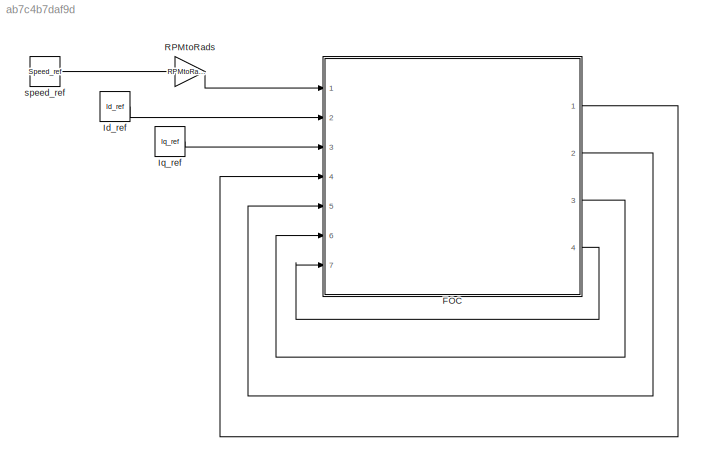
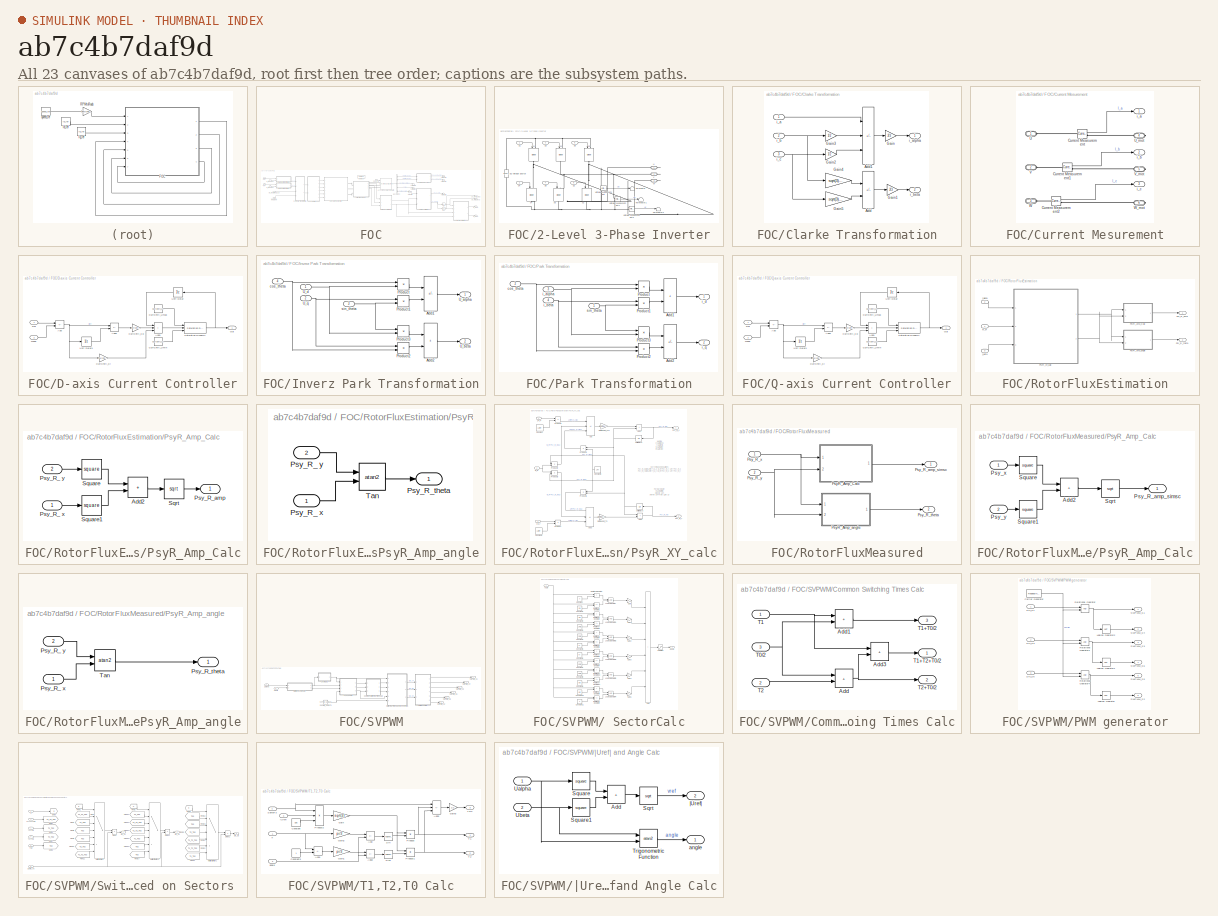
[diagram: thumbnail index - all 23 canvases of the model, root first then tree order]
MODEL slx_ab7c4b7daf9d
KIND model
CONFIG AbsTol = auto
CONFIG EnableMultiTasking = off
CONFIG FixedStep = auto
CONFIG MaxStep = auto
CONFIG MinStep = auto
CONFIG RelTol = 1e-3
CONFIG SampleTimeConstraint = Unconstrained
CONFIG SolverName = VariableStepAuto
CONFIG StartTime = 0.0
CONFIG StopTime = SimTime
BLOCK [SubSystem] FOC
  Ports = [7, 4]
  RequestExecContextInheritance = off
BLOCK [SubSystem] FOC/2-Level 3-Phase Inverter
  Ports = [6, 0, 0, 0, 0, 0, 3]
  RequestExecContextInheritance = off
BLOCK [Reference] FOC/2-Level 3-Phase Inverter/DC Voltage Source  REF=spsDCVoltageSourceLib/DC Voltage Source
  Ports = [0, 0, 0, 0, 0, 1, 1]
  SourceBlock = spsDCVoltageSourceLib/DC Voltage Source
  SourceProductBaseCode = PS
  SourceType = DC Voltage Source
BLOCK [Inport] FOC/2-Level 3-Phase Inverter/S1
BLOCK [Inport] FOC/2-Level 3-Phase Inverter/S2
  Port = 6
BLOCK [Inport] FOC/2-Level 3-Phase Inverter/S3
  Port = 3
BLOCK [Inport] FOC/2-Level 3-Phase Inverter/S4
  Port = 2
BLOCK [Inport] FOC/2-Level 3-Phase Inverter/S5
  Port = 5
BLOCK [Inport] FOC/2-Level 3-Phase Inverter/S6
  Port = 4
BLOCK [Terminator] FOC/2-Level 3-Phase Inverter/Terminator
BLOCK [Terminator] FOC/2-Level 3-Phase Inverter/Terminator1
BLOCK [Terminator] FOC/2-Level 3-Phase Inverter/Terminator2
BLOCK [PMIOPort] FOC/2-Level 3-Phase Inverter/U
  Side = Right
BLOCK [PMIOPort] FOC/2-Level 3-Phase Inverter/V
  Port = 2
  Side = Right
BLOCK [Reference] FOC/2-Level 3-Phase Inverter/Voltage Measurement  REF=spsVoltageMeasurementLib/Voltage Measurement
  Ports = [0, 1, 0, 0, 0, 2]
  SourceBlock = spsVoltageMeasurementLib/Voltage Measurement
  SourceProductBaseCode = PS
  SourceType = Voltage Measurement
  UserDataPersistent = on
BLOCK [Reference] FOC/2-Level 3-Phase Inverter/Voltage Measurement1  REF=spsVoltageMeasurementLib/Voltage Measurement
  Ports = [0, 1, 0, 0, 0, 2]
  SourceBlock = spsVoltageMeasurementLib/Voltage Measurement
  SourceProductBaseCode = PS
  SourceType = Voltage Measurement
  UserDataPersistent = on
BLOCK [Reference] FOC/2-Level 3-Phase Inverter/Voltage Measurement2  REF=spsVoltageMeasurementLib/Voltage Measurement
  Ports = [0, 1, 0, 0, 0, 2]
  SourceBlock = spsVoltageMeasurementLib/Voltage Measurement
  SourceProductBaseCode = PS
  SourceType = Voltage Measurement
  UserDataPersistent = on
BLOCK [PMIOPort] FOC/2-Level 3-Phase Inverter/W
  Port = 3
  Side = Right
BLOCK [Reference] FOC/2-Level 3-Phase Inverter/s1  REF=spsIGBTDiodeLib/IGBT//Diode
  NameLocation = right
  Ports = [1, 0, 0, 0, 0, 1, 1]
  SourceBlock = spsIGBTDiodeLib/IGBT//Diode
  SourceProductBaseCode = PS
  SourceType = IGBT/Diode
BLOCK [Reference] FOC/2-Level 3-Phase Inverter/s2  REF=spsIGBTDiodeLib/IGBT//Diode
  NameLocation = right
  Ports = [1, 0, 0, 0, 0, 1, 1]
  SourceBlock = spsIGBTDiodeLib/IGBT//Diode
  SourceProductBaseCode = PS
  SourceType = IGBT/Diode
BLOCK [Reference] FOC/2-Level 3-Phase Inverter/s3  REF=spsIGBTDiodeLib/IGBT//Diode
  NameLocation = right
  Ports = [1, 0, 0, 0, 0, 1, 1]
  SourceBlock = spsIGBTDiodeLib/IGBT//Diode
  SourceProductBaseCode = PS
  SourceType = IGBT/Diode
BLOCK [Reference] FOC/2-Level 3-Phase Inverter/s4  REF=spsIGBTDiodeLib/IGBT//Diode
  NameLocation = right
  Ports = [1, 0, 0, 0, 0, 1, 1]
  SourceBlock = spsIGBTDiodeLib/IGBT//Diode
  SourceProductBaseCode = PS
  SourceType = IGBT/Diode
BLOCK [Reference] FOC/2-Level 3-Phase Inverter/s5  REF=spsIGBTDiodeLib/IGBT//Diode
  NameLocation = right
  Ports = [1, 0, 0, 0, 0, 1, 1]
  SourceBlock = spsIGBTDiodeLib/IGBT//Diode
  SourceProductBaseCode = PS
  SourceType = IGBT/Diode
BLOCK [Reference] FOC/2-Level 3-Phase Inverter/s6  REF=spsIGBTDiodeLib/IGBT//Diode
  NameLocation = right
  Ports = [1, 0, 0, 0, 0, 1, 1]
  SourceBlock = spsIGBTDiodeLib/IGBT//Diode
  SourceProductBaseCode = PS
  SourceType = IGBT/Diode
BLOCK [Reference] FOC/Asynchronous Machine SI Units  REF=spsAsynchronousMachineSIUnitsLib/Asynchronous Machine
SI Units
  Ports = [1, 1, 0, 0, 0, 3]
  SourceBlock = spsAsynchronousMachineSIUnitsLib/Asynchronous Machine\nSI Units
  SourceProductBaseCode = PS
  SourceType = Asynchronous Machine
BLOCK [BusSelector] FOC/Bus Selector
  OutputSignals = Rotor measurements.Rotor flux phir_d (V s),Rotor measurements.Rotor flux phir_q (V s),Mechanical.Electromagnetic torque Te (N*m),Lm (H),Mechanical.Rotor speed (wm)
  Ports = [1, 5]
BLOCK [SubSystem] FOC/Clarke Transformation
  Ports = [3, 2]
  RequestExecContextInheritance = off
BLOCK [Sum] FOC/Clarke Transformation/Add
  IconShape = rectangular
  Inputs = +-
  Ports = [2, 1]
BLOCK [Sum] FOC/Clarke Transformation/Add1
  IconShape = rectangular
  Inputs = +--
  Ports = [3, 1]
BLOCK [Gain] FOC/Clarke Transformation/Gain
  Gain = 2/3
BLOCK [Gain] FOC/Clarke Transformation/Gain1
  Gain = 2/3
BLOCK [Gain] FOC/Clarke Transformation/Gain2
  Gain = 1/2
BLOCK [Gain] FOC/Clarke Transformation/Gain3
  Gain = 1/2
BLOCK [Gain] FOC/Clarke Transformation/Gain4
  Gain = sqrt(3) / 2
BLOCK [Gain] FOC/Clarke Transformation/Gain5
  Gain = sqrt(3) / 2
BLOCK [Inport] FOC/Clarke Transformation/i_a
BLOCK [Outport] FOC/Clarke Transformation/i_alpha
BLOCK [Inport] FOC/Clarke Transformation/i_b
  Port = 2
BLOCK [Outport] FOC/Clarke Transformation/i_beta
  Port = 2
BLOCK [Inport] FOC/Clarke Transformation/i_c
  Port = 3
BLOCK [Trigonometry] FOC/Cos
  Operator = cos
  Ports = [1, 1]
BLOCK [SubSystem] FOC/Current Mesurement
  PortSchema = {"entries":[{"content":{"sides":[{"content":{"connectorIds":["LConn1","LConn2","LConn3"]},"type":"ConnectorPlacement.EquallySpacedRectSide","uuid":"218ce0f1-32a4-4746-b253-7a5af0291eed"},{"content":{"connectorIds":["RConn1","RConn2","RConn3","Out1","Out2","Out3"],"side":"RIGHT"},"type":"ConnectorPlacement.EquallySpacedRectSide","uuid":"ad04235a-dac5-4102-860a-7632fef99471"},{"content":{"connectorI...<+302ch>
  Ports = [0, 3, 0, 0, 0, 3, 3]
  RequestExecContextInheritance = off
BLOCK [Reference] FOC/Current Mesurement/Current Measurement  REF=spsCurrentMeasurementLib/Current Measurement
  Ports = [0, 1, 0, 0, 0, 1, 1]
  SourceBlock = spsCurrentMeasurementLib/Current Measurement
  SourceProductBaseCode = PS
  SourceType = Current Measurement
  UserDataPersistent = on
BLOCK [Reference] FOC/Current Mesurement/Current Measurement1  REF=spsCurrentMeasurementLib/Current Measurement
  Ports = [0, 1, 0, 0, 0, 1, 1]
  SourceBlock = spsCurrentMeasurementLib/Current Measurement
  SourceProductBaseCode = PS
  SourceType = Current Measurement
  UserDataPersistent = on
BLOCK [Reference] FOC/Current Mesurement/Current Measurement2  REF=spsCurrentMeasurementLib/Current Measurement
  Ports = [0, 1, 0, 0, 0, 1, 1]
  SourceBlock = spsCurrentMeasurementLib/Current Measurement
  SourceProductBaseCode = PS
  SourceType = Current Measurement
  UserDataPersistent = on
BLOCK [PMIOPort] FOC/Current Mesurement/U
  Side = Left
BLOCK [PMIOPort] FOC/Current Mesurement/U_mot
  Port = 4
  Side = Right
BLOCK [PMIOPort] FOC/Current Mesurement/V
  Port = 2
  Side = Left
BLOCK [PMIOPort] FOC/Current Mesurement/V_mot
  Port = 5
  Side = Right
BLOCK [PMIOPort] FOC/Current Mesurement/W
  Port = 3
  Side = Left
BLOCK [PMIOPort] FOC/Current Mesurement/W_mot
  Port = 6
  Side = Right
BLOCK [Outport] FOC/Current Mesurement/i_a
BLOCK [Outport] FOC/Current Mesurement/i_b
  Port = 2
BLOCK [Outport] FOC/Current Mesurement/i_c
  Port = 3
BLOCK [SubSystem] FOC/D-axis Current Controller
  Ports = [2, 1]
  RequestExecContextInheritance = off
BLOCK [Sum] FOC/D-axis Current Controller/Add
  IconShape = rectangular
  Inputs = +-
  Ports = [2, 1]
BLOCK [Sum] FOC/D-axis Current Controller/Add1
  IconShape = rectangular
  Inputs = +++
  Ports = [3, 1]
BLOCK [Sum] FOC/D-axis Current Controller/Add2
  IconShape = rectangular
  Inputs = +-
  Ports = [2, 1]
BLOCK [Gain] FOC/D-axis Current Controller/CurrCntrl_Ki
  Gain = CurrCntrl_Ki
BLOCK [Gain] FOC/D-axis Current Controller/CurrCntrl_Kp
  Gain = CurrCntrl_Kp
BLOCK [Constant] FOC/D-axis Current Controller/CurrCntrl_Umax
  Value = CurrCntrl_Umax
BLOCK [Constant] FOC/D-axis Current Controller/CurrCntrl_Umin
  Value = CurrCntrl_Umin
BLOCK [Inport] FOC/D-axis Current Controller/Meas
  Port = 2
BLOCK [Outport] FOC/D-axis Current Controller/Out
BLOCK [Inport] FOC/D-axis Current Controller/Ref
BLOCK [Reference] FOC/D-axis Current Controller/Saturation Dynamic  REF=simulink/Discontinuities/Saturation
Dynamic
  Ports = [3, 1]
  SourceBlock = simulink/Discontinuities/Saturation\nDynamic
  SourceProductBaseCode = SL
  SourceType = Saturation Dynamic
BLOCK [UnitDelay] FOC/D-axis Current Controller/Unit Delay
  HasFrameUpgradeWarning = on
  NameLocation = top
  SampleTime = -1
BLOCK [UnitDelay] FOC/D-axis Current Controller/Unit Delay1
  HasFrameUpgradeWarning = on
  SampleTime = -1
BLOCK [Inport] FOC/Id_feedback
  Port = 4
BLOCK [Outport] FOC/Id_meas
BLOCK [Inport] FOC/Id_ref
  Port = 2
BLOCK [SubSystem] FOC/Inverz Park Transformation
  Ports = [4, 2]
  RequestExecContextInheritance = off
BLOCK [Sum] FOC/Inverz Park Transformation/Add1
  IconShape = rectangular
  Inputs = +-
  Ports = [2, 1]
BLOCK [Sum] FOC/Inverz Park Transformation/Add2
  IconShape = rectangular
  Ports = [2, 1]
BLOCK [Product] FOC/Inverz Park Transformation/Product
  Ports = [2, 1]
BLOCK [Product] FOC/Inverz Park Transformation/Product1
  Ports = [2, 1]
BLOCK [Product] FOC/Inverz Park Transformation/Product2
  Ports = [2, 1]
BLOCK [Product] FOC/Inverz Park Transformation/Product3
  Ports = [2, 1]
BLOCK [Outport] FOC/Inverz Park Transformation/U_alpha
BLOCK [Outport] FOC/Inverz Park Transformation/U_beta
  Port = 2
BLOCK [Inport] FOC/Inverz Park Transformation/U_d
BLOCK [Inport] FOC/Inverz Park Transformation/U_q
  Port = 2
BLOCK [Inport] FOC/Inverz Park Transformation/cos_theta
  Port = 4
BLOCK [Inport] FOC/Inverz Park Transformation/sin_theta
  Port = 3
BLOCK [Inport] FOC/Iq_feedback
  Port = 5
BLOCK [Outport] FOC/Iq_meas
  Port = 2
BLOCK [Inport] FOC/Iq_ref
  Port = 3
BLOCK [SubSystem] FOC/Park Transformation
  Ports = [4, 2]
  RequestExecContextInheritance = off
BLOCK [Sum] FOC/Park Transformation/Add1
  IconShape = rectangular
  Ports = [2, 1]
BLOCK [Sum] FOC/Park Transformation/Add2
  IconShape = rectangular
  Inputs = -+
  Ports = [2, 1]
BLOCK [Product] FOC/Park Transformation/Product
  Ports = [2, 1]
BLOCK [Product] FOC/Park Transformation/Product1
  Ports = [2, 1]
BLOCK [Product] FOC/Park Transformation/Product2
  Ports = [2, 1]
BLOCK [Product] FOC/Park Transformation/Product3
  Ports = [2, 1]
BLOCK [Inport] FOC/Park Transformation/cos_theta
  Port = 2
BLOCK [Inport] FOC/Park Transformation/i_alpha
  Port = 3
BLOCK [Inport] FOC/Park Transformation/i_beta
  Port = 4
BLOCK [Outport] FOC/Park Transformation/i_d
BLOCK [Outport] FOC/Park Transformation/i_q
  Port = 2
BLOCK [Inport] FOC/Park Transformation/sin_theta
BLOCK [Gain] FOC/PolePairs
  Gain = PolePairs
BLOCK [SubSystem] FOC/Q-axis Current Controller
  Ports = [2, 1]
  RequestExecContextInheritance = off
BLOCK [Sum] FOC/Q-axis Current Controller/Add
  IconShape = rectangular
  Inputs = +-
  Ports = [2, 1]
BLOCK [Sum] FOC/Q-axis Current Controller/Add1
  IconShape = rectangular
  Inputs = +++
  Ports = [3, 1]
BLOCK [Sum] FOC/Q-axis Current Controller/Add2
  IconShape = rectangular
  Inputs = +-
  Ports = [2, 1]
BLOCK [Gain] FOC/Q-axis Current Controller/CurrCntrl_Ki
  Gain = CurrCntrl_Ki
BLOCK [Gain] FOC/Q-axis Current Controller/CurrCntrl_Kp
  Gain = CurrCntrl_Kp
BLOCK [Constant] FOC/Q-axis Current Controller/CurrCntrl_Umax
  Value = CurrCntrl_Umax
BLOCK [Constant] FOC/Q-axis Current Controller/CurrCntrl_Umin
  Value = CurrCntrl_Umin
BLOCK [Inport] FOC/Q-axis Current Controller/Meas
  Port = 2
BLOCK [Outport] FOC/Q-axis Current Controller/Out
BLOCK [Inport] FOC/Q-axis Current Controller/Ref
BLOCK [Reference] FOC/Q-axis Current Controller/Saturation Dynamic  REF=simulink/Discontinuities/Saturation
Dynamic
  Ports = [3, 1]
  SourceBlock = simulink/Discontinuities/Saturation\nDynamic
  SourceProductBaseCode = SL
  SourceType = Saturation Dynamic
BLOCK [UnitDelay] FOC/Q-axis Current Controller/Unit Delay
  HasFrameUpgradeWarning = on
  NameLocation = top
  SampleTime = -1
BLOCK [UnitDelay] FOC/Q-axis Current Controller/Unit Delay1
  HasFrameUpgradeWarning = on
  SampleTime = -1
BLOCK [SubSystem] FOC/RotorFluxEstimation
  Ports = [3, 2]
  RequestExecContextInheritance = off
BLOCK [SubSystem] FOC/RotorFluxEstimation/PsyR_Amp_Calc
  Ports = [2, 1]
  RequestExecContextInheritance = off
BLOCK [Sum] FOC/RotorFluxEstimation/PsyR_Amp_Calc/Add2
  IconShape = rectangular
  Ports = [2, 1]
BLOCK [Inport] FOC/RotorFluxEstimation/PsyR_Amp_Calc/Psy_R_ x
BLOCK [Inport] FOC/RotorFluxEstimation/PsyR_Amp_Calc/Psy_R_ y
  Port = 2
BLOCK [Outport] FOC/RotorFluxEstimation/PsyR_Amp_Calc/Psy_R_amp
BLOCK [Sqrt] FOC/RotorFluxEstimation/PsyR_Amp_Calc/Sqrt
BLOCK [Math] FOC/RotorFluxEstimation/PsyR_Amp_Calc/Square
  Operator = square
  Ports = [1, 1]
BLOCK [Math] FOC/RotorFluxEstimation/PsyR_Amp_Calc/Square1
  Operator = square
  Ports = [1, 1]
BLOCK [SubSystem] FOC/RotorFluxEstimation/PsyR_Amp_angle
  Ports = [2, 1]
  RequestExecContextInheritance = off
BLOCK [Inport] FOC/RotorFluxEstimation/PsyR_Amp_angle/Psy_R_ x
BLOCK [Inport] FOC/RotorFluxEstimation/PsyR_Amp_angle/Psy_R_ y
  Port = 2
BLOCK [Outport] FOC/RotorFluxEstimation/PsyR_Amp_angle/Psy_R_theta
BLOCK [Trigonometry] FOC/RotorFluxEstimation/PsyR_Amp_angle/Tan
  Operator = atan2
  Ports = [2, 1]
BLOCK [SubSystem] FOC/RotorFluxEstimation/PsyR_XY_calc
  Ports = [3, 2]
  RequestExecContextInheritance = off
BLOCK [Sum] FOC/RotorFluxEstimation/PsyR_XY_calc/Add
  IconShape = rectangular
  Inputs = +--
  Ports = [3, 1]
BLOCK [Sum] FOC/RotorFluxEstimation/PsyR_XY_calc/Add1
  IconShape = rectangular
  Ports = [2, 1]
BLOCK [Sum] FOC/RotorFluxEstimation/PsyR_XY_calc/Add2
  IconShape = rectangular
  Ports = [2, 1]
BLOCK [Sum] FOC/RotorFluxEstimation/PsyR_XY_calc/Add3
  IconShape = rectangular
  Inputs = -++
  Ports = [3, 1]
BLOCK [Constant] FOC/RotorFluxEstimation/PsyR_XY_calc/Constant
  Value = Lm / Tr
BLOCK [Constant] FOC/RotorFluxEstimation/PsyR_XY_calc/Constant1
  Value = Lm / Tr
BLOCK [Constant] FOC/RotorFluxEstimation/PsyR_XY_calc/Constant3
  NameLocation = top
  Value = 1/Tr
BLOCK [Product] FOC/RotorFluxEstimation/PsyR_XY_calc/Product
  Ports = [2, 1]
BLOCK [Product] FOC/RotorFluxEstimation/PsyR_XY_calc/Product1
  Ports = [2, 1]
BLOCK [Product] FOC/RotorFluxEstimation/PsyR_XY_calc/Product2
  Ports = [2, 1]
BLOCK [Product] FOC/RotorFluxEstimation/PsyR_XY_calc/Product3
  Ports = [2, 1]
BLOCK [Product] FOC/RotorFluxEstimation/PsyR_XY_calc/Product4
  NameLocation = top
  Ports = [2, 1]
BLOCK [Product] FOC/RotorFluxEstimation/PsyR_XY_calc/Product5
  NameLocation = top
  Ports = [2, 1]
BLOCK [Outport] FOC/RotorFluxEstimation/PsyR_XY_calc/Psy_R_ x
BLOCK [Outport] FOC/RotorFluxEstimation/PsyR_XY_calc/Psy_R_ y
  Port = 2
BLOCK [Gain] FOC/RotorFluxEstimation/PsyR_XY_calc/RotFluxEst_Ts
  Gain = RotFluxEst_Ts
BLOCK [Gain] FOC/RotorFluxEstimation/PsyR_XY_calc/RotFluxEst_Ts1
  Gain = RotFluxEst_Ts
BLOCK [UnitDelay] FOC/RotorFluxEstimation/PsyR_XY_calc/Unit Delay2
  HasFrameUpgradeWarning = on
  NameLocation = top
  SampleTime = -1
BLOCK [UnitDelay] FOC/RotorFluxEstimation/PsyR_XY_calc/Unit Delay3
  HasFrameUpgradeWarning = on
  NameLocation = top
  SampleTime = -1
BLOCK [Inport] FOC/RotorFluxEstimation/PsyR_XY_calc/i_S_ x
BLOCK [Inport] FOC/RotorFluxEstimation/PsyR_XY_calc/i_S_ y
  Port = 3
BLOCK [Inport] FOC/RotorFluxEstimation/PsyR_XY_calc/w_R
  Port = 2
BLOCK [Outport] FOC/RotorFluxEstimation/Psy_R_amp
BLOCK [Outport] FOC/RotorFluxEstimation/Psy_R_theta
  Port = 2
BLOCK [Inport] FOC/RotorFluxEstimation/i_alpha
  Port = 2
BLOCK [Inport] FOC/RotorFluxEstimation/i_beta
  Port = 3
BLOCK [Inport] FOC/RotorFluxEstimation/w_R
BLOCK [SubSystem] FOC/RotorFluxMeasured
  Ports = [2, 2]
  RequestExecContextInheritance = off
BLOCK [SubSystem] FOC/RotorFluxMeasured/PsyR_Amp_Calc
  Ports = [2, 1]
  RequestExecContextInheritance = off
BLOCK [Sum] FOC/RotorFluxMeasured/PsyR_Amp_Calc/Add2
  IconShape = rectangular
  Ports = [2, 1]
BLOCK [Outport] FOC/RotorFluxMeasured/PsyR_Amp_Calc/Psy_R_amp_simsc
BLOCK [Inport] FOC/RotorFluxMeasured/PsyR_Amp_Calc/Psy_x
BLOCK [Inport] FOC/RotorFluxMeasured/PsyR_Amp_Calc/Psy_y
  Port = 2
BLOCK [Sqrt] FOC/RotorFluxMeasured/PsyR_Amp_Calc/Sqrt
BLOCK [Math] FOC/RotorFluxMeasured/PsyR_Amp_Calc/Square
  Operator = square
  Ports = [1, 1]
BLOCK [Math] FOC/RotorFluxMeasured/PsyR_Amp_Calc/Square1
  Operator = square
  Ports = [1, 1]
BLOCK [SubSystem] FOC/RotorFluxMeasured/PsyR_Amp_angle
  Ports = [2, 1]
  RequestExecContextInheritance = off
BLOCK [Inport] FOC/RotorFluxMeasured/PsyR_Amp_angle/Psy_R_ x
BLOCK [Inport] FOC/RotorFluxMeasured/PsyR_Amp_angle/Psy_R_ y
  Port = 2
BLOCK [Outport] FOC/RotorFluxMeasured/PsyR_Amp_angle/Psy_R_theta
BLOCK [Trigonometry] FOC/RotorFluxMeasured/PsyR_Amp_angle/Tan
  Operator = atan2
  Ports = [2, 1]
BLOCK [Outport] FOC/RotorFluxMeasured/Psy_R_amp_simsc
BLOCK [Outport] FOC/RotorFluxMeasured/Psy_R_theta
  Port = 2
BLOCK [Inport] FOC/RotorFluxMeasured/Psy_R_x
BLOCK [Inport] FOC/RotorFluxMeasured/Psy_R_y
  Port = 2
BLOCK [SubSystem] FOC/SVPWM
  Ports = [2, 6]
  RequestExecContextInheritance = off
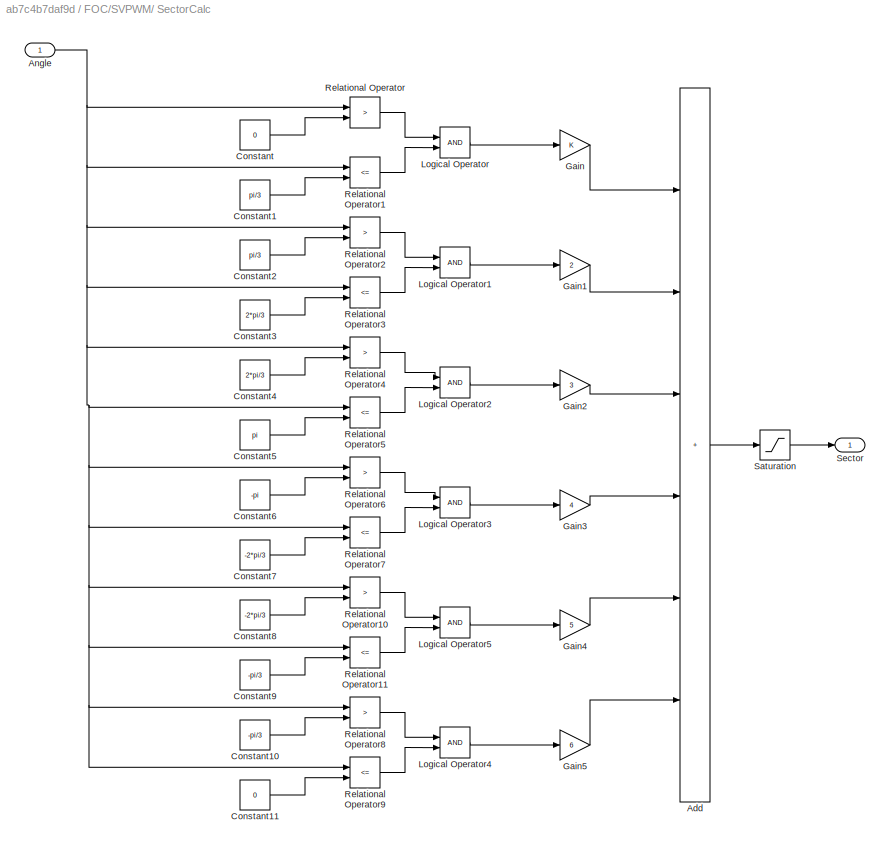
BLOCK [SubSystem] FOC/SVPWM/ SectorCalc
  Ports = [1, 1]
  RequestExecContextInheritance = off
BLOCK [Sum] FOC/SVPWM/ SectorCalc/Add
  IconShape = rectangular
  Inputs = ++++++
  Ports = [6, 1]
BLOCK [Inport] FOC/SVPWM/ SectorCalc/Angle
BLOCK [Constant] FOC/SVPWM/ SectorCalc/Constant
  Value = 0
BLOCK [Constant] FOC/SVPWM/ SectorCalc/Constant1
  Value = pi/3
BLOCK [Constant] FOC/SVPWM/ SectorCalc/Constant10
  Value = -pi/3
BLOCK [Constant] FOC/SVPWM/ SectorCalc/Constant11
  Value = 0
BLOCK [Constant] FOC/SVPWM/ SectorCalc/Constant2
  Value = pi/3
BLOCK [Constant] FOC/SVPWM/ SectorCalc/Constant3
  Value = 2*pi/3
BLOCK [Constant] FOC/SVPWM/ SectorCalc/Constant4
  Value = 2*pi/3
BLOCK [Constant] FOC/SVPWM/ SectorCalc/Constant5
  Value = pi
BLOCK [Constant] FOC/SVPWM/ SectorCalc/Constant6
  Value = -pi
BLOCK [Constant] FOC/SVPWM/ SectorCalc/Constant7
  Value = -2*pi/3
BLOCK [Constant] FOC/SVPWM/ SectorCalc/Constant8
  Value = -2*pi/3
BLOCK [Constant] FOC/SVPWM/ SectorCalc/Constant9
  Value = -pi/3
BLOCK [Gain] FOC/SVPWM/ SectorCalc/Gain
BLOCK [Gain] FOC/SVPWM/ SectorCalc/Gain1
  Gain = 2
BLOCK [Gain] FOC/SVPWM/ SectorCalc/Gain2
  Gain = 3
BLOCK [Gain] FOC/SVPWM/ SectorCalc/Gain3
  Gain = 4
BLOCK [Gain] FOC/SVPWM/ SectorCalc/Gain4
  Gain = 5
BLOCK [Gain] FOC/SVPWM/ SectorCalc/Gain5
  Gain = 6
BLOCK [Logic] FOC/SVPWM/ SectorCalc/Logical Operator
  AllPortsSameDT = off
  OutDataTypeStr = boolean
  Ports = [2, 1]
BLOCK [Logic] FOC/SVPWM/ SectorCalc/Logical Operator1
  AllPortsSameDT = off
  OutDataTypeStr = boolean
  Ports = [2, 1]
BLOCK [Logic] FOC/SVPWM/ SectorCalc/Logical Operator2
  AllPortsSameDT = off
  OutDataTypeStr = boolean
  Ports = [2, 1]
BLOCK [Logic] FOC/SVPWM/ SectorCalc/Logical Operator3
  AllPortsSameDT = off
  OutDataTypeStr = boolean
  Ports = [2, 1]
BLOCK [Logic] FOC/SVPWM/ SectorCalc/Logical Operator4
  AllPortsSameDT = off
  OutDataTypeStr = boolean
  Ports = [2, 1]
BLOCK [Logic] FOC/SVPWM/ SectorCalc/Logical Operator5
  AllPortsSameDT = off
  OutDataTypeStr = boolean
  Ports = [2, 1]
BLOCK [RelationalOperator] FOC/SVPWM/ SectorCalc/Relational Operator
  InputSameDT = off
  Operator = >
  OutDataTypeStr = boolean
  Ports = [2, 1]
  RndMeth = Simplest
BLOCK [RelationalOperator] FOC/SVPWM/ SectorCalc/Relational Operator1
  InputSameDT = off
  Operator = <=
  OutDataTypeStr = boolean
  Ports = [2, 1]
  RndMeth = Simplest
BLOCK [RelationalOperator] FOC/SVPWM/ SectorCalc/Relational Operator10
  InputSameDT = off
  Operator = >
  OutDataTypeStr = boolean
  Ports = [2, 1]
  RndMeth = Simplest
BLOCK [RelationalOperator] FOC/SVPWM/ SectorCalc/Relational Operator11
  InputSameDT = off
  Operator = <=
  OutDataTypeStr = boolean
  Ports = [2, 1]
  RndMeth = Simplest
BLOCK [RelationalOperator] FOC/SVPWM/ SectorCalc/Relational Operator2
  InputSameDT = off
  Operator = >
  OutDataTypeStr = boolean
  Ports = [2, 1]
  RndMeth = Simplest
BLOCK [RelationalOperator] FOC/SVPWM/ SectorCalc/Relational Operator3
  InputSameDT = off
  Operator = <=
  OutDataTypeStr = boolean
  Ports = [2, 1]
  RndMeth = Simplest
BLOCK [RelationalOperator] FOC/SVPWM/ SectorCalc/Relational Operator4
  InputSameDT = off
  Operator = >
  OutDataTypeStr = boolean
  Ports = [2, 1]
  RndMeth = Simplest
BLOCK [RelationalOperator] FOC/SVPWM/ SectorCalc/Relational Operator5
  InputSameDT = off
  Operator = <=
  OutDataTypeStr = boolean
  Ports = [2, 1]
  RndMeth = Simplest
BLOCK [RelationalOperator] FOC/SVPWM/ SectorCalc/Relational Operator6
  InputSameDT = off
  Operator = >
  OutDataTypeStr = boolean
  Ports = [2, 1]
  RndMeth = Simplest
BLOCK [RelationalOperator] FOC/SVPWM/ SectorCalc/Relational Operator7
  InputSameDT = off
  Operator = <=
  OutDataTypeStr = boolean
  Ports = [2, 1]
  RndMeth = Simplest
BLOCK [RelationalOperator] FOC/SVPWM/ SectorCalc/Relational Operator8
  InputSameDT = off
  Operator = >
  OutDataTypeStr = boolean
  Ports = [2, 1]
  RndMeth = Simplest
BLOCK [RelationalOperator] FOC/SVPWM/ SectorCalc/Relational Operator9
  InputSameDT = off
  Operator = <=
  OutDataTypeStr = boolean
  Ports = [2, 1]
  RndMeth = Simplest
BLOCK [Saturate] FOC/SVPWM/ SectorCalc/Saturation
  LowerLimit = 1
  UpperLimit = 6
BLOCK [Outport] FOC/SVPWM/ SectorCalc/Sector
BLOCK [SubSystem] FOC/SVPWM/Common Switching Times Calc
  Ports = [3, 3]
  RequestExecContextInheritance = off
BLOCK [Sum] FOC/SVPWM/Common Switching Times Calc/Add
  IconShape = rectangular
  Ports = [2, 1]
BLOCK [Sum] FOC/SVPWM/Common Switching Times Calc/Add1
  IconShape = rectangular
  Ports = [2, 1]
BLOCK [Sum] FOC/SVPWM/Common Switching Times Calc/Add3
  IconShape = rectangular
  Ports = [2, 1]
BLOCK [Inport] FOC/SVPWM/Common Switching Times Calc/T0//2
  Port = 3
BLOCK [Inport] FOC/SVPWM/Common Switching Times Calc/T1
BLOCK [Outport] FOC/SVPWM/Common Switching Times Calc/T1+T0//2
  Port = 3
BLOCK [Outport] FOC/SVPWM/Common Switching Times Calc/T1+T2+T0//2
BLOCK [Inport] FOC/SVPWM/Common Switching Times Calc/T2
  Port = 2
BLOCK [Outport] FOC/SVPWM/Common Switching Times Calc/T2+T0//2
  Port = 2
BLOCK [SubSystem] FOC/SVPWM/PWM generator
  Ports = [3, 6]
  RequestExecContextInheritance = off
BLOCK [Reference] FOC/SVPWM/PWM generator/Carrier Generator  REF=simulink/Sources/Repeating
Sequence
  Ports = [0, 1]
  SourceBlock = simulink/Sources/Repeating\nSequence
  SourceProductBaseCode = SL
  SourceType = Repeating table
BLOCK [Logic] FOC/SVPWM/PWM generator/Logical Operator
  AllPortsSameDT = off
  Operator = NOT
  OutDataTypeStr = boolean
  Ports = [1, 1]
BLOCK [Logic] FOC/SVPWM/PWM generator/Logical Operator1
  AllPortsSameDT = off
  Operator = NOT
  OutDataTypeStr = boolean
  Ports = [1, 1]
BLOCK [Logic] FOC/SVPWM/PWM generator/Logical Operator2
  AllPortsSameDT = off
  Operator = NOT
  OutDataTypeStr = boolean
  Ports = [1, 1]
BLOCK [RelationalOperator] FOC/SVPWM/PWM generator/Relational Operator
  InputSameDT = off
  OutDataTypeStr = boolean
  Ports = [2, 1]
  RndMeth = Simplest
BLOCK [RelationalOperator] FOC/SVPWM/PWM generator/Relational Operator2
  InputSameDT = off
  OutDataTypeStr = boolean
  Ports = [2, 1]
  RndMeth = Simplest
BLOCK [RelationalOperator] FOC/SVPWM/PWM generator/Relational Operator4
  InputSameDT = off
  OutDataTypeStr = boolean
  Ports = [2, 1]
  RndMeth = Simplest
BLOCK [Outport] FOC/SVPWM/PWM generator/SWPWM_S1
BLOCK [Outport] FOC/SVPWM/PWM generator/SWPWM_S2
  Port = 6
BLOCK [Outport] FOC/SVPWM/PWM generator/SWPWM_S3
  Port = 3
BLOCK [Outport] FOC/SVPWM/PWM generator/SWPWM_S4
  Port = 2
BLOCK [Outport] FOC/SVPWM/PWM generator/SWPWM_S5
  Port = 5
BLOCK [Outport] FOC/SVPWM/PWM generator/SWPWM_S6
  Port = 4
BLOCK [Inport] FOC/SVPWM/PWM generator/Sin_S1
BLOCK [Inport] FOC/SVPWM/PWM generator/Sin_S3
  Port = 2
BLOCK [Inport] FOC/SVPWM/PWM generator/Sin_S5
  Port = 3
BLOCK [Constant] FOC/SVPWM/SVPWM_SampTs
  Value = SVPWM_SampTs
BLOCK [Outport] FOC/SVPWM/SWPWM_S1
BLOCK [Outport] FOC/SVPWM/SWPWM_S2
  Port = 6
BLOCK [Outport] FOC/SVPWM/SWPWM_S3
  Port = 3
BLOCK [Outport] FOC/SVPWM/SWPWM_S4
  Port = 2
BLOCK [Outport] FOC/SVPWM/SWPWM_S5
  Port = 5
BLOCK [Outport] FOC/SVPWM/SWPWM_S6
  Port = 4
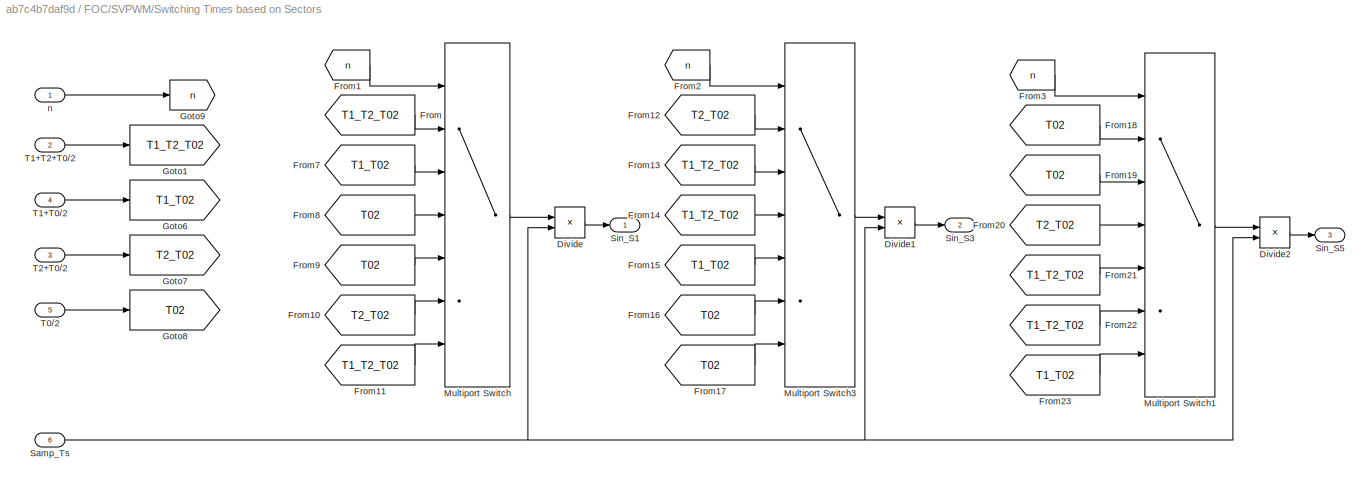
BLOCK [SubSystem] FOC/SVPWM/Switching Times based on Sectors 
  Ports = [6, 3]
  RequestExecContextInheritance = off
BLOCK [Product] FOC/SVPWM/Switching Times based on Sectors /Divide
  Inputs = */
  Ports = [2, 1]
BLOCK [Product] FOC/SVPWM/Switching Times based on Sectors /Divide1
  Inputs = */
  Ports = [2, 1]
BLOCK [Product] FOC/SVPWM/Switching Times based on Sectors /Divide2
  Inputs = */
  Ports = [2, 1]
BLOCK [From] FOC/SVPWM/Switching Times based on Sectors /From
  GotoTag = T1_T2_T02
BLOCK [From] FOC/SVPWM/Switching Times based on Sectors /From1
  GotoTag = n
BLOCK [From] FOC/SVPWM/Switching Times based on Sectors /From10
  GotoTag = T2_T02
BLOCK [From] FOC/SVPWM/Switching Times based on Sectors /From11
  GotoTag = T1_T2_T02
BLOCK [From] FOC/SVPWM/Switching Times based on Sectors /From12
  GotoTag = T2_T02
BLOCK [From] FOC/SVPWM/Switching Times based on Sectors /From13
  GotoTag = T1_T2_T02
BLOCK [From] FOC/SVPWM/Switching Times based on Sectors /From14
  GotoTag = T1_T2_T02
BLOCK [From] FOC/SVPWM/Switching Times based on Sectors /From15
  GotoTag = T1_T02
BLOCK [From] FOC/SVPWM/Switching Times based on Sectors /From16
  GotoTag = T02
BLOCK [From] FOC/SVPWM/Switching Times based on Sectors /From17
  GotoTag = T02
BLOCK [From] FOC/SVPWM/Switching Times based on Sectors /From18
  GotoTag = T02
BLOCK [From] FOC/SVPWM/Switching Times based on Sectors /From19
  GotoTag = T02
BLOCK [From] FOC/SVPWM/Switching Times based on Sectors /From2
  GotoTag = n
BLOCK [From] FOC/SVPWM/Switching Times based on Sectors /From20
  GotoTag = T2_T02
BLOCK [From] FOC/SVPWM/Switching Times based on Sectors /From21
  GotoTag = T1_T2_T02
BLOCK [From] FOC/SVPWM/Switching Times based on Sectors /From22
  GotoTag = T1_T2_T02
BLOCK [From] FOC/SVPWM/Switching Times based on Sectors /From23
  GotoTag = T1_T02
BLOCK [From] FOC/SVPWM/Switching Times based on Sectors /From3
  GotoTag = n
BLOCK [From] FOC/SVPWM/Switching Times based on Sectors /From7
  GotoTag = T1_T02
BLOCK [From] FOC/SVPWM/Switching Times based on Sectors /From8
  GotoTag = T02
BLOCK [From] FOC/SVPWM/Switching Times based on Sectors /From9
  GotoTag = T02
BLOCK [Goto] FOC/SVPWM/Switching Times based on Sectors /Goto1
  GotoTag = T1_T2_T02
BLOCK [Goto] FOC/SVPWM/Switching Times based on Sectors /Goto6
  GotoTag = T1_T02
BLOCK [Goto] FOC/SVPWM/Switching Times based on Sectors /Goto7
  GotoTag = T2_T02
BLOCK [Goto] FOC/SVPWM/Switching Times based on Sectors /Goto8
  GotoTag = T02
BLOCK [Goto] FOC/SVPWM/Switching Times based on Sectors /Goto9
  GotoTag = n
BLOCK [MultiPortSwitch] FOC/SVPWM/Switching Times based on Sectors /Multiport Switch
  DataPortIndices = {1,2,3,4,5,6}
  DataPortOrder = Specify indices
  DiagnosticForDefault = None
  InputSameDT = off
  Inputs = 6
  Ports = [7, 1]
  SaturateOnIntegerOverflow = off
BLOCK [MultiPortSwitch] FOC/SVPWM/Switching Times based on Sectors /Multiport Switch1
  DataPortIndices = {1,2,3,4,5,6}
  DataPortOrder = Specify indices
  DiagnosticForDefault = None
  InputSameDT = off
  Inputs = 6
  Ports = [7, 1]
  SaturateOnIntegerOverflow = off
BLOCK [MultiPortSwitch] FOC/SVPWM/Switching Times based on Sectors /Multiport Switch3
  DataPortIndices = {1,2,3,4,5,6}
  DataPortOrder = Specify indices
  DiagnosticForDefault = None
  InputSameDT = off
  Inputs = 6
  Ports = [7, 1]
  SaturateOnIntegerOverflow = off
BLOCK [Inport] FOC/SVPWM/Switching Times based on Sectors /Samp_Ts
  Port = 6
BLOCK [Outport] FOC/SVPWM/Switching Times based on Sectors /Sin_S1
BLOCK [Outport] FOC/SVPWM/Switching Times based on Sectors /Sin_S3
  Port = 2
BLOCK [Outport] FOC/SVPWM/Switching Times based on Sectors /Sin_S5
  Port = 3
BLOCK [Inport] FOC/SVPWM/Switching Times based on Sectors /T0//2
  Port = 5
BLOCK [Inport] FOC/SVPWM/Switching Times based on Sectors /T1+T0//2
  Port = 4
BLOCK [Inport] FOC/SVPWM/Switching Times based on Sectors /T1+T2+T0//2
  Port = 2
BLOCK [Inport] FOC/SVPWM/Switching Times based on Sectors /T2+T0//2
  Port = 3
BLOCK [Inport] FOC/SVPWM/Switching Times based on Sectors /n
BLOCK [SubSystem] FOC/SVPWM/T1,T2,T0 Calc
  Ports = [4, 3]
  RequestExecContextInheritance = off
BLOCK [Sum] FOC/SVPWM/T1,T2,T0 Calc/Add
  IconShape = rectangular
  Inputs = +-
  Ports = [2, 1]
BLOCK [Sum] FOC/SVPWM/T1,T2,T0 Calc/Add1
  IconShape = rectangular
  Inputs = +-
  Ports = [2, 1]
BLOCK [Sum] FOC/SVPWM/T1,T2,T0 Calc/Add2
  IconShape = rectangular
  Inputs = -+
  Ports = [2, 1]
BLOCK [Sum] FOC/SVPWM/T1,T2,T0 Calc/Add3
  IconShape = rectangular
  Inputs = +--
  Ports = [3, 1]
BLOCK [Constant] FOC/SVPWM/T1,T2,T0 Calc/Constant
  Value = Udc
BLOCK [Constant] FOC/SVPWM/T1,T2,T0 Calc/Constant3
BLOCK [Gain] FOC/SVPWM/T1,T2,T0 Calc/Gain
  Gain = sqrt(3)
BLOCK [Gain] FOC/SVPWM/T1,T2,T0 Calc/Gain1
  Gain = pi/3
BLOCK [Gain] FOC/SVPWM/T1,T2,T0 Calc/Gain2
  Gain = pi/3
BLOCK [Gain] FOC/SVPWM/T1,T2,T0 Calc/Gain3
  Gain = 1/2
BLOCK [Product] FOC/SVPWM/T1,T2,T0 Calc/Product
  Ports = [2, 1]
BLOCK [Product] FOC/SVPWM/T1,T2,T0 Calc/Product1
  Ports = [2, 1]
BLOCK [Product] FOC/SVPWM/T1,T2,T0 Calc/Product2
  Inputs = **/
  Ports = [3, 1]
BLOCK [Inport] FOC/SVPWM/T1,T2,T0 Calc/SampTs
  Port = 4
BLOCK [Trigonometry] FOC/SVPWM/T1,T2,T0 Calc/Sin
  Ports = [1, 1]
BLOCK [Trigonometry] FOC/SVPWM/T1,T2,T0 Calc/Sin1
  Ports = [1, 1]
BLOCK [Outport] FOC/SVPWM/T1,T2,T0 Calc/T0//2
  Port = 3
BLOCK [Outport] FOC/SVPWM/T1,T2,T0 Calc/T1
BLOCK [Outport] FOC/SVPWM/T1,T2,T0 Calc/T2
  Port = 2
BLOCK [Inport] FOC/SVPWM/T1,T2,T0 Calc/angle
  Port = 2
BLOCK [Inport] FOC/SVPWM/T1,T2,T0 Calc/n
BLOCK [Inport] FOC/SVPWM/T1,T2,T0 Calc/|Uref|
  Port = 3
BLOCK [Inport] FOC/SVPWM/Ualpha
BLOCK [Inport] FOC/SVPWM/Ubeta
  Port = 2
BLOCK [SubSystem] FOC/SVPWM/|Uref| and Angle Calc
  Ports = [2, 2]
  RequestExecContextInheritance = off
BLOCK [Sum] FOC/SVPWM/|Uref| and Angle Calc/Add
  IconShape = rectangular
  Ports = [2, 1]
BLOCK [Sqrt] FOC/SVPWM/|Uref| and Angle Calc/Sqrt
BLOCK [Math] FOC/SVPWM/|Uref| and Angle Calc/Square
  Operator = square
  OutputSignalType = real
  Ports = [1, 1]
BLOCK [Math] FOC/SVPWM/|Uref| and Angle Calc/Square1
  Operator = square
  OutputSignalType = real
  Ports = [1, 1]
BLOCK [Trigonometry] FOC/SVPWM/|Uref| and Angle Calc/Trigonometric Function
  Operator = atan2
  Ports = [2, 1]
BLOCK [Inport] FOC/SVPWM/|Uref| and Angle Calc/Ualpha
BLOCK [Inport] FOC/SVPWM/|Uref| and Angle Calc/Ubeta
  Port = 2
BLOCK [Outport] FOC/SVPWM/|Uref| and Angle Calc/angle
BLOCK [Outport] FOC/SVPWM/|Uref| and Angle Calc/|Uref|
  Port = 2
BLOCK [Trigonometry] FOC/Sin
  Ports = [1, 1]
BLOCK [Terminator] FOC/Terminator1
BLOCK [Terminator] FOC/Terminator3
BLOCK [Terminator] FOC/Terminator4
BLOCK [Terminator] FOC/Terminator6
BLOCK [Terminator] FOC/Terminator7
BLOCK [Inport] FOC/cos_theta_feedback
  Port = 7
BLOCK [Outport] FOC/cos_theta_meas
  Port = 4
BLOCK [Reference] FOC/powergui  REF=spspowerguiLib/powergui
  Ports = []
  Priority = 1
  SourceBlock = spspowerguiLib/powergui
  SourceProductBaseCode = PS
  SourceType = PSB option menu block
BLOCK [Inport] FOC/sin_theta_feedback
  Port = 6
BLOCK [Outport] FOC/sin_theta_meas
  Port = 3
BLOCK [Inport] FOC/speed_ref
BLOCK [Constant] Id_ref
  Value = Id_ref
BLOCK [Constant] Iq_ref
  Value = Iq_ref
BLOCK [Gain] RPMtoRads
  Gain = RPMtoRads
BLOCK [Constant] speed_ref
  Value = Speed_ref
ANNOTATION FOC/RotorFluxEstimation/PsyR_XY_calc: Forward Euler h : sample time x[k] = x[k-1] + h y[k] = y[k-1] + h * f(x[k-1], y[k-1])
ANNOTATION FOC/RotorFluxEstimation/PsyR_XY_calc: Naming x => alpha y => beta S => stator R => rotor
ANNOTATION FOC/RotorFluxEstimation/PsyR_XY_calc: Current based equations Psy_ R _ x d/dt = Lm/Tr * i_ S _ x - w_ R * Psy_ R _ y - 1/Tr * Psy_ R _ x Psy_ R _ y d/dt = Lm/Tr * i_ S _ y + w_ R * Psy_ R _ x - 1/Tr * Psy_ R _ y
LINE FOC/2-Level 3-Phase Inverter/S1:1 -> FOC/2-Level 3-Phase Inverter/s1:1
LINE FOC/2-Level 3-Phase Inverter/S2:1 -> FOC/2-Level 3-Phase Inverter/s2:1
LINE FOC/2-Level 3-Phase Inverter/S3:1 -> FOC/2-Level 3-Phase Inverter/s3:1
LINE FOC/2-Level 3-Phase Inverter/S4:1 -> FOC/2-Level 3-Phase Inverter/s4:1
LINE FOC/2-Level 3-Phase Inverter/S5:1 -> FOC/2-Level 3-Phase Inverter/s5:1
LINE FOC/2-Level 3-Phase Inverter/S6:1 -> FOC/2-Level 3-Phase Inverter/s6:1
LINE FOC/2-Level 3-Phase Inverter/Voltage Measurement1:1 -> FOC/2-Level 3-Phase Inverter/Terminator1:1
LINE FOC/2-Level 3-Phase Inverter/Voltage Measurement2:1 -> FOC/2-Level 3-Phase Inverter/Terminator2:1
LINE FOC/2-Level 3-Phase Inverter/Voltage Measurement:1 -> FOC/2-Level 3-Phase Inverter/Terminator:1
LINE FOC/Asynchronous Machine SI Units:1 -> FOC/Bus Selector:1
LINE FOC/Bus Selector:1 -> FOC/RotorFluxMeasured:1
LINE FOC/Bus Selector:2 -> FOC/RotorFluxMeasured:2
LINE FOC/Bus Selector:3 -> FOC/Terminator4:1
LINE FOC/Bus Selector:4 -> FOC/Terminator7:1
LINE FOC/Bus Selector:5 -> FOC/PolePairs:1
LINE FOC/Clarke Transformation/Add1:1 -> FOC/Clarke Transformation/Gain:1
LINE FOC/Clarke Transformation/Add:1 -> FOC/Clarke Transformation/Gain1:1
LINE FOC/Clarke Transformation/Gain1:1 -> FOC/Clarke Transformation/i_beta:1
LINE FOC/Clarke Transformation/Gain2:1 -> FOC/Clarke Transformation/Add1:3
LINE FOC/Clarke Transformation/Gain3:1 -> FOC/Clarke Transformation/Add1:2
LINE FOC/Clarke Transformation/Gain4:1 -> FOC/Clarke Transformation/Add:1
LINE FOC/Clarke Transformation/Gain5:1 -> FOC/Clarke Transformation/Add:2
LINE FOC/Clarke Transformation/Gain:1 -> FOC/Clarke Transformation/i_alpha:1
LINE FOC/Clarke Transformation/i_a:1 -> FOC/Clarke Transformation/Add1:1
NET FOC/Clarke Transformation/i_b:1 -> FOC/Clarke Transformation/Gain3:1, FOC/Clarke Transformation/Gain4:1
NET FOC/Clarke Transformation/i_c:1 -> FOC/Clarke Transformation/Gain2:1, FOC/Clarke Transformation/Gain5:1
NET FOC/Clarke Transformation:1 -> FOC/Park Transformation:3, FOC/RotorFluxEstimation:2
NET FOC/Clarke Transformation:2 -> FOC/Park Transformation:4, FOC/RotorFluxEstimation:3
NET FOC/Cos:1 -> FOC/Park Transformation:2, FOC/cos_theta_meas:1
LINE FOC/Current Mesurement/Current Measurement1:1 -> FOC/Current Mesurement/i_b:1
LINE FOC/Current Mesurement/Current Measurement2:1 -> FOC/Current Mesurement/i_c:1
LINE FOC/Current Mesurement/Current Measurement:1 -> FOC/Current Mesurement/i_a:1
LINE FOC/Current Mesurement:1 -> FOC/Clarke Transformation:1
LINE FOC/Current Mesurement:2 -> FOC/Clarke Transformation:2
LINE FOC/Current Mesurement:3 -> FOC/Clarke Transformation:3
LINE FOC/D-axis Current Controller/Add1:1 -> FOC/D-axis Current Controller/Saturation Dynamic:2
LINE FOC/D-axis Current Controller/Add2:1 -> FOC/D-axis Current Controller/CurrCntrl_Kp:1
NET FOC/D-axis Current Controller/Add:1 -> FOC/D-axis Current Controller/Add2:1, FOC/D-axis Current Controller/CurrCntrl_Ki:1, FOC/D-axis Current Controller/Unit Delay1:1
LINE FOC/D-axis Current Controller/CurrCntrl_Ki:1 -> FOC/D-axis Current Controller/Add1:3
LINE FOC/D-axis Current Controller/CurrCntrl_Kp:1 -> FOC/D-axis Current Controller/Add1:2
LINE FOC/D-axis Current Controller/CurrCntrl_Umax:1 -> FOC/D-axis Current Controller/Saturation Dynamic:1
LINE FOC/D-axis Current Controller/CurrCntrl_Umin:1 -> FOC/D-axis Current Controller/Saturation Dynamic:3
LINE FOC/D-axis Current Controller/Meas:1 -> FOC/D-axis Current Controller/Add:2
LINE FOC/D-axis Current Controller/Ref:1 -> FOC/D-axis Current Controller/Add:1
NET FOC/D-axis Current Controller/Saturation Dynamic:1 -> FOC/D-axis Current Controller/Out:1, FOC/D-axis Current Controller/Unit Delay:1
LINE FOC/D-axis Current Controller/Unit Delay1:1 -> FOC/D-axis Current Controller/Add2:2
LINE FOC/D-axis Current Controller/Unit Delay:1 -> FOC/D-axis Current Controller/Add1:1
LINE FOC/D-axis Current Controller:1 -> FOC/Inverz Park Transformation:1
LINE FOC/Id_feedback:1 -> FOC/D-axis Current Controller:2
LINE FOC/Id_ref:1 -> FOC/D-axis Current Controller:1
LINE FOC/Inverz Park Transformation/Add1:1 -> FOC/Inverz Park Transformation/U_alpha:1
LINE FOC/Inverz Park Transformation/Add2:1 -> FOC/Inverz Park Transformation/U_beta:1
LINE FOC/Inverz Park Transformation/Product1:1 -> FOC/Inverz Park Transformation/Add1:2
LINE FOC/Inverz Park Transformation/Product2:1 -> FOC/Inverz Park Transformation/Add2:2
LINE FOC/Inverz Park Transformation/Product3:1 -> FOC/Inverz Park Transformation/Add2:1
LINE FOC/Inverz Park Transformation/Product:1 -> FOC/Inverz Park Transformation/Add1:1
NET FOC/Inverz Park Transformation/U_d:1 -> FOC/Inverz Park Transformation/Product3:2, FOC/Inverz Park Transformation/Product:2
NET FOC/Inverz Park Transformation/U_q:1 -> FOC/Inverz Park Transformation/Product1:1, FOC/Inverz Park Transformation/Product2:1
NET FOC/Inverz Park Transformation/cos_theta:1 -> FOC/Inverz Park Transformation/Product2:2, FOC/Inverz Park Transformation/Product:1
NET FOC/Inverz Park Transformation/sin_theta:1 -> FOC/Inverz Park Transformation/Product1:2, FOC/Inverz Park Transformation/Product3:1
LINE FOC/Inverz Park Transformation:1 -> FOC/SVPWM:1
LINE FOC/Inverz Park Transformation:2 -> FOC/SVPWM:2
LINE FOC/Iq_feedback:1 -> FOC/Q-axis Current Controller:2
LINE FOC/Iq_ref:1 -> FOC/Q-axis Current Controller:1
LINE FOC/Park Transformation/Add1:1 -> FOC/Park Transformation/i_d:1
LINE FOC/Park Transformation/Add2:1 -> FOC/Park Transformation/i_q:1
LINE FOC/Park Transformation/Product1:1 -> FOC/Park Transformation/Add1:2
LINE FOC/Park Transformation/Product2:1 -> FOC/Park Transformation/Add2:2
LINE FOC/Park Transformation/Product3:1 -> FOC/Park Transformation/Add2:1
LINE FOC/Park Transformation/Product:1 -> FOC/Park Transformation/Add1:1
NET FOC/Park Transformation/cos_theta:1 -> FOC/Park Transformation/Product2:2, FOC/Park Transformation/Product:1
NET FOC/Park Transformation/i_alpha:1 -> FOC/Park Transformation/Product3:2, FOC/Park Transformation/Product:2
NET FOC/Park Transformation/i_beta:1 -> FOC/Park Transformation/Product1:1, FOC/Park Transformation/Product2:1
NET FOC/Park Transformation/sin_theta:1 -> FOC/Park Transformation/Product1:2, FOC/Park Transformation/Product3:1
LINE FOC/Park Transformation:1 -> FOC/Id_meas:1
LINE FOC/Park Transformation:2 -> FOC/Iq_meas:1
LINE FOC/PolePairs:1 -> FOC/RotorFluxEstimation:1
LINE FOC/Q-axis Current Controller/Add1:1 -> FOC/Q-axis Current Controller/Saturation Dynamic:2
LINE FOC/Q-axis Current Controller/Add2:1 -> FOC/Q-axis Current Controller/CurrCntrl_Kp:1
NET FOC/Q-axis Current Controller/Add:1 -> FOC/Q-axis Current Controller/Add2:1, FOC/Q-axis Current Controller/CurrCntrl_Ki:1, FOC/Q-axis Current Controller/Unit Delay1:1
LINE FOC/Q-axis Current Controller/CurrCntrl_Ki:1 -> FOC/Q-axis Current Controller/Add1:3
LINE FOC/Q-axis Current Controller/CurrCntrl_Kp:1 -> FOC/Q-axis Current Controller/Add1:2
LINE FOC/Q-axis Current Controller/CurrCntrl_Umax:1 -> FOC/Q-axis Current Controller/Saturation Dynamic:1
LINE FOC/Q-axis Current Controller/CurrCntrl_Umin:1 -> FOC/Q-axis Current Controller/Saturation Dynamic:3
LINE FOC/Q-axis Current Controller/Meas:1 -> FOC/Q-axis Current Controller/Add:2
LINE FOC/Q-axis Current Controller/Ref:1 -> FOC/Q-axis Current Controller/Add:1
NET FOC/Q-axis Current Controller/Saturation Dynamic:1 -> FOC/Q-axis Current Controller/Out:1, FOC/Q-axis Current Controller/Unit Delay:1
LINE FOC/Q-axis Current Controller/Unit Delay1:1 -> FOC/Q-axis Current Controller/Add2:2
LINE FOC/Q-axis Current Controller/Unit Delay:1 -> FOC/Q-axis Current Controller/Add1:1
LINE FOC/Q-axis Current Controller:1 -> FOC/Inverz Park Transformation:2
LINE FOC/RotorFluxEstimation/PsyR_Amp_Calc/Add2:1 -> FOC/RotorFluxEstimation/PsyR_Amp_Calc/Sqrt:1
LINE FOC/RotorFluxEstimation/PsyR_Amp_Calc/Psy_R_ x:1 -> FOC/RotorFluxEstimation/PsyR_Amp_Calc/Square1:1
LINE FOC/RotorFluxEstimation/PsyR_Amp_Calc/Psy_R_ y:1 -> FOC/RotorFluxEstimation/PsyR_Amp_Calc/Square:1
LINE FOC/RotorFluxEstimation/PsyR_Amp_Calc/Sqrt:1 -> FOC/RotorFluxEstimation/PsyR_Amp_Calc/Psy_R_amp:1
LINE FOC/RotorFluxEstimation/PsyR_Amp_Calc/Square1:1 -> FOC/RotorFluxEstimation/PsyR_Amp_Calc/Add2:2
LINE FOC/RotorFluxEstimation/PsyR_Amp_Calc/Square:1 -> FOC/RotorFluxEstimation/PsyR_Amp_Calc/Add2:1
LINE FOC/RotorFluxEstimation/PsyR_Amp_Calc:1 -> FOC/RotorFluxEstimation/Psy_R_amp:1
LINE FOC/RotorFluxEstimation/PsyR_Amp_angle/Psy_R_ x:1 -> FOC/RotorFluxEstimation/PsyR_Amp_angle/Tan:2
LINE FOC/RotorFluxEstimation/PsyR_Amp_angle/Psy_R_ y:1 -> FOC/RotorFluxEstimation/PsyR_Amp_angle/Tan:1
LINE FOC/RotorFluxEstimation/PsyR_Amp_angle/Tan:1 -> FOC/RotorFluxEstimation/PsyR_Amp_angle/Psy_R_theta:1
LINE FOC/RotorFluxEstimation/PsyR_Amp_angle:1 -> FOC/RotorFluxEstimation/Psy_R_theta:1
NET FOC/RotorFluxEstimation/PsyR_XY_calc/Add1:1 -> FOC/RotorFluxEstimation/PsyR_XY_calc/Psy_R_ x:1, FOC/RotorFluxEstimation/PsyR_XY_calc/Unit Delay2:1
NET FOC/RotorFluxEstimation/PsyR_XY_calc/Add2:1 -> FOC/RotorFluxEstimation/PsyR_XY_calc/Psy_R_ y:1, FOC/RotorFluxEstimation/PsyR_XY_calc/Unit Delay3:1
LINE FOC/RotorFluxEstimation/PsyR_XY_calc/Add3:1 -> FOC/RotorFluxEstimation/PsyR_XY_calc/RotFluxEst_Ts:1
LINE FOC/RotorFluxEstimation/PsyR_XY_calc/Add:1 -> FOC/RotorFluxEstimation/PsyR_XY_calc/RotFluxEst_Ts1:1
LINE FOC/RotorFluxEstimation/PsyR_XY_calc/Constant1:1 -> FOC/RotorFluxEstimation/PsyR_XY_calc/Product:2
NET FOC/RotorFluxEstimation/PsyR_XY_calc/Constant3:1 -> FOC/RotorFluxEstimation/PsyR_XY_calc/Product4:2, FOC/RotorFluxEstimation/PsyR_XY_calc/Product5:1
LINE FOC/RotorFluxEstimation/PsyR_XY_calc/Constant:1 -> FOC/RotorFluxEstimation/PsyR_XY_calc/Product1:2
LINE FOC/RotorFluxEstimation/PsyR_XY_calc/Product1:1 -> FOC/RotorFluxEstimation/PsyR_XY_calc/Add:1
LINE FOC/RotorFluxEstimation/PsyR_XY_calc/Product2:1 -> FOC/RotorFluxEstimation/PsyR_XY_calc/Add:2
LINE FOC/RotorFluxEstimation/PsyR_XY_calc/Product3:1 -> FOC/RotorFluxEstimation/PsyR_XY_calc/Add3:2
LINE FOC/RotorFluxEstimation/PsyR_XY_calc/Product4:1 -> FOC/RotorFluxEstimation/PsyR_XY_calc/Add:3
LINE FOC/RotorFluxEstimation/PsyR_XY_calc/Product5:1 -> FOC/RotorFluxEstimation/PsyR_XY_calc/Add3:1
LINE FOC/RotorFluxEstimation/PsyR_XY_calc/Product:1 -> FOC/RotorFluxEstimation/PsyR_XY_calc/Add3:3
LINE FOC/RotorFluxEstimation/PsyR_XY_calc/RotFluxEst_Ts1:1 -> FOC/RotorFluxEstimation/PsyR_XY_calc/Add1:1
LINE FOC/RotorFluxEstimation/PsyR_XY_calc/RotFluxEst_Ts:1 -> FOC/RotorFluxEstimation/PsyR_XY_calc/Add2:2
NET FOC/RotorFluxEstimation/PsyR_XY_calc/Unit Delay2:1 -> FOC/RotorFluxEstimation/PsyR_XY_calc/Add1:2, FOC/RotorFluxEstimation/PsyR_XY_calc/Product3:2, FOC/RotorFluxEstimation/PsyR_XY_calc/Product4:1
NET FOC/RotorFluxEstimation/PsyR_XY_calc/Unit Delay3:1 -> FOC/RotorFluxEstimation/PsyR_XY_calc/Add2:1, FOC/RotorFluxEstimation/PsyR_XY_calc/Product2:1, FOC/RotorFluxEstimation/PsyR_XY_calc/Product5:2
LINE FOC/RotorFluxEstimation/PsyR_XY_calc/i_S_ x:1 -> FOC/RotorFluxEstimation/PsyR_XY_calc/Product1:1
LINE FOC/RotorFluxEstimation/PsyR_XY_calc/i_S_ y:1 -> FOC/RotorFluxEstimation/PsyR_XY_calc/Product:1
NET FOC/RotorFluxEstimation/PsyR_XY_calc/w_R:1 -> FOC/RotorFluxEstimation/PsyR_XY_calc/Product2:2, FOC/RotorFluxEstimation/PsyR_XY_calc/Product3:1
NET FOC/RotorFluxEstimation/PsyR_XY_calc:1 -> FOC/RotorFluxEstimation/PsyR_Amp_Calc:1, FOC/RotorFluxEstimation/PsyR_Amp_angle:1
NET FOC/RotorFluxEstimation/PsyR_XY_calc:2 -> FOC/RotorFluxEstimation/PsyR_Amp_Calc:2, FOC/RotorFluxEstimation/PsyR_Amp_angle:2
LINE FOC/RotorFluxEstimation/i_alpha:1 -> FOC/RotorFluxEstimation/PsyR_XY_calc:1
LINE FOC/RotorFluxEstimation/i_beta:1 -> FOC/RotorFluxEstimation/PsyR_XY_calc:3
LINE FOC/RotorFluxEstimation/w_R:1 -> FOC/RotorFluxEstimation/PsyR_XY_calc:2
LINE FOC/RotorFluxEstimation:1 -> FOC/Terminator6:1
NET FOC/RotorFluxEstimation:2 -> FOC/Cos:1, FOC/Sin:1
LINE FOC/RotorFluxMeasured/PsyR_Amp_Calc/Add2:1 -> FOC/RotorFluxMeasured/PsyR_Amp_Calc/Sqrt:1
LINE FOC/RotorFluxMeasured/PsyR_Amp_Calc/Psy_x:1 -> FOC/RotorFluxMeasured/PsyR_Amp_Calc/Square:1
LINE FOC/RotorFluxMeasured/PsyR_Amp_Calc/Psy_y:1 -> FOC/RotorFluxMeasured/PsyR_Amp_Calc/Square1:1
LINE FOC/RotorFluxMeasured/PsyR_Amp_Calc/Sqrt:1 -> FOC/RotorFluxMeasured/PsyR_Amp_Calc/Psy_R_amp_simsc:1
LINE FOC/RotorFluxMeasured/PsyR_Amp_Calc/Square1:1 -> FOC/RotorFluxMeasured/PsyR_Amp_Calc/Add2:2
LINE FOC/RotorFluxMeasured/PsyR_Amp_Calc/Square:1 -> FOC/RotorFluxMeasured/PsyR_Amp_Calc/Add2:1
LINE FOC/RotorFluxMeasured/PsyR_Amp_Calc:1 -> FOC/RotorFluxMeasured/Psy_R_amp_simsc:1
LINE FOC/RotorFluxMeasured/PsyR_Amp_angle/Psy_R_ x:1 -> FOC/RotorFluxMeasured/PsyR_Amp_angle/Tan:2
LINE FOC/RotorFluxMeasured/PsyR_Amp_angle/Psy_R_ y:1 -> FOC/RotorFluxMeasured/PsyR_Amp_angle/Tan:1
LINE FOC/RotorFluxMeasured/PsyR_Amp_angle/Tan:1 -> FOC/RotorFluxMeasured/PsyR_Amp_angle/Psy_R_theta:1
LINE FOC/RotorFluxMeasured/PsyR_Amp_angle:1 -> FOC/RotorFluxMeasured/Psy_R_theta:1
NET FOC/RotorFluxMeasured/Psy_R_x:1 -> FOC/RotorFluxMeasured/PsyR_Amp_Calc:1, FOC/RotorFluxMeasured/PsyR_Amp_angle:1
NET FOC/RotorFluxMeasured/Psy_R_y:1 -> FOC/RotorFluxMeasured/PsyR_Amp_Calc:2, FOC/RotorFluxMeasured/PsyR_Amp_angle:2
LINE FOC/RotorFluxMeasured:1 -> FOC/Terminator3:1
LINE FOC/RotorFluxMeasured:2 -> FOC/Terminator1:1
LINE FOC/SVPWM/ SectorCalc/Add:1 -> FOC/SVPWM/ SectorCalc/Saturation:1
NET FOC/SVPWM/ SectorCalc/Angle:1 -> FOC/SVPWM/ SectorCalc/Relational Operator10:1, FOC/SVPWM/ SectorCalc/Relational Operator11:1, FOC/SVPWM/ SectorCalc/Relational Operator1:1, FOC/SVPWM/ SectorCalc/Relational Operator2:1, FOC/SVPWM/ SectorCalc/Relational Operator3:1, FOC/SVPWM/ SectorCalc/Relational Operator4:1, FOC/SVPWM/ SectorCalc/Relational Operator5:1, FOC/SVPWM/ SectorCalc/Relational Operator6:1, FOC/SVPWM/ SectorCalc/Relational Operator7:1, FOC/SVPWM/ SectorCalc/Relational Operator8:1, FOC/SVPWM/ SectorCalc/Relational Operator9:1, FOC/SVPWM/ SectorCalc/Relational Operator:1
LINE FOC/SVPWM/ SectorCalc/Constant10:1 -> FOC/SVPWM/ SectorCalc/Relational Operator8:2
LINE FOC/SVPWM/ SectorCalc/Constant11:1 -> FOC/SVPWM/ SectorCalc/Relational Operator9:2
LINE FOC/SVPWM/ SectorCalc/Constant1:1 -> FOC/SVPWM/ SectorCalc/Relational Operator1:2
LINE FOC/SVPWM/ SectorCalc/Constant2:1 -> FOC/SVPWM/ SectorCalc/Relational Operator2:2
LINE FOC/SVPWM/ SectorCalc/Constant3:1 -> FOC/SVPWM/ SectorCalc/Relational Operator3:2
LINE FOC/SVPWM/ SectorCalc/Constant4:1 -> FOC/SVPWM/ SectorCalc/Relational Operator4:2
LINE FOC/SVPWM/ SectorCalc/Constant5:1 -> FOC/SVPWM/ SectorCalc/Relational Operator5:2
LINE FOC/SVPWM/ SectorCalc/Constant6:1 -> FOC/SVPWM/ SectorCalc/Relational Operator6:2
LINE FOC/SVPWM/ SectorCalc/Constant7:1 -> FOC/SVPWM/ SectorCalc/Relational Operator7:2
LINE FOC/SVPWM/ SectorCalc/Constant8:1 -> FOC/SVPWM/ SectorCalc/Relational Operator10:2
LINE FOC/SVPWM/ SectorCalc/Constant9:1 -> FOC/SVPWM/ SectorCalc/Relational Operator11:2
LINE FOC/SVPWM/ SectorCalc/Constant:1 -> FOC/SVPWM/ SectorCalc/Relational Operator:2
LINE FOC/SVPWM/ SectorCalc/Gain1:1 -> FOC/SVPWM/ SectorCalc/Add:2
LINE FOC/SVPWM/ SectorCalc/Gain2:1 -> FOC/SVPWM/ SectorCalc/Add:3
LINE FOC/SVPWM/ SectorCalc/Gain3:1 -> FOC/SVPWM/ SectorCalc/Add:4
LINE FOC/SVPWM/ SectorCalc/Gain4:1 -> FOC/SVPWM/ SectorCalc/Add:5
LINE FOC/SVPWM/ SectorCalc/Gain5:1 -> FOC/SVPWM/ SectorCalc/Add:6
LINE FOC/SVPWM/ SectorCalc/Gain:1 -> FOC/SVPWM/ SectorCalc/Add:1
LINE FOC/SVPWM/ SectorCalc/Logical Operator1:1 -> FOC/SVPWM/ SectorCalc/Gain1:1
LINE FOC/SVPWM/ SectorCalc/Logical Operator2:1 -> FOC/SVPWM/ SectorCalc/Gain2:1
LINE FOC/SVPWM/ SectorCalc/Logical Operator3:1 -> FOC/SVPWM/ SectorCalc/Gain3:1
LINE FOC/SVPWM/ SectorCalc/Logical Operator4:1 -> FOC/SVPWM/ SectorCalc/Gain5:1
LINE FOC/SVPWM/ SectorCalc/Logical Operator5:1 -> FOC/SVPWM/ SectorCalc/Gain4:1
LINE FOC/SVPWM/ SectorCalc/Logical Operator:1 -> FOC/SVPWM/ SectorCalc/Gain:1
LINE FOC/SVPWM/ SectorCalc/Relational Operator10:1 -> FOC/SVPWM/ SectorCalc/Logical Operator5:1
LINE FOC/SVPWM/ SectorCalc/Relational Operator11:1 -> FOC/SVPWM/ SectorCalc/Logical Operator5:2
LINE FOC/SVPWM/ SectorCalc/Relational Operator1:1 -> FOC/SVPWM/ SectorCalc/Logical Operator:2
LINE FOC/SVPWM/ SectorCalc/Relational Operator2:1 -> FOC/SVPWM/ SectorCalc/Logical Operator1:1
LINE FOC/SVPWM/ SectorCalc/Relational Operator3:1 -> FOC/SVPWM/ SectorCalc/Logical Operator1:2
LINE FOC/SVPWM/ SectorCalc/Relational Operator4:1 -> FOC/SVPWM/ SectorCalc/Logical Operator2:1
LINE FOC/SVPWM/ SectorCalc/Relational Operator5:1 -> FOC/SVPWM/ SectorCalc/Logical Operator2:2
LINE FOC/SVPWM/ SectorCalc/Relational Operator6:1 -> FOC/SVPWM/ SectorCalc/Logical Operator3:1
LINE FOC/SVPWM/ SectorCalc/Relational Operator7:1 -> FOC/SVPWM/ SectorCalc/Logical Operator3:2
LINE FOC/SVPWM/ SectorCalc/Relational Operator8:1 -> FOC/SVPWM/ SectorCalc/Logical Operator4:1
LINE FOC/SVPWM/ SectorCalc/Relational Operator9:1 -> FOC/SVPWM/ SectorCalc/Logical Operator4:2
LINE FOC/SVPWM/ SectorCalc/Relational Operator:1 -> FOC/SVPWM/ SectorCalc/Logical Operator:1
LINE FOC/SVPWM/ SectorCalc/Saturation:1 -> FOC/SVPWM/ SectorCalc/Sector:1
NET FOC/SVPWM/ SectorCalc:1 -> FOC/SVPWM/Switching Times based on Sectors :1, FOC/SVPWM/T1,T2,T0 Calc:1
LINE FOC/SVPWM/Common Switching Times Calc/Add1:1 -> FOC/SVPWM/Common Switching Times Calc/T1+T0//2:1
LINE FOC/SVPWM/Common Switching Times Calc/Add3:1 -> FOC/SVPWM/Common Switching Times Calc/T1+T2+T0//2:1
NET FOC/SVPWM/Common Switching Times Calc/Add:1 -> FOC/SVPWM/Common Switching Times Calc/Add3:2, FOC/SVPWM/Common Switching Times Calc/T2+T0//2:1
NET FOC/SVPWM/Common Switching Times Calc/T0//2:1 -> FOC/SVPWM/Common Switching Times Calc/Add1:2, FOC/SVPWM/Common Switching Times Calc/Add:1
NET FOC/SVPWM/Common Switching Times Calc/T1:1 -> FOC/SVPWM/Common Switching Times Calc/Add1:1, FOC/SVPWM/Common Switching Times Calc/Add3:1
LINE FOC/SVPWM/Common Switching Times Calc/T2:1 -> FOC/SVPWM/Common Switching Times Calc/Add:2
LINE FOC/SVPWM/Common Switching Times Calc:1 -> FOC/SVPWM/Switching Times based on Sectors :2
LINE FOC/SVPWM/Common Switching Times Calc:2 -> FOC/SVPWM/Switching Times based on Sectors :3
LINE FOC/SVPWM/Common Switching Times Calc:3 -> FOC/SVPWM/Switching Times based on Sectors :4
NET FOC/SVPWM/PWM generator/Carrier Generator:1 -> FOC/SVPWM/PWM generator/Relational Operator2:2, FOC/SVPWM/PWM generator/Relational Operator4:2, FOC/SVPWM/PWM generator/Relational Operator:2
LINE FOC/SVPWM/PWM generator/Logical Operator1:1 -> FOC/SVPWM/PWM generator/SWPWM_S6:1
LINE FOC/SVPWM/PWM generator/Logical Operator2:1 -> FOC/SVPWM/PWM generator/SWPWM_S4:1
LINE FOC/SVPWM/PWM generator/Logical Operator:1 -> FOC/SVPWM/PWM generator/SWPWM_S2:1
NET FOC/SVPWM/PWM generator/Relational Operator2:1 -> FOC/SVPWM/PWM generator/Logical Operator1:1, FOC/SVPWM/PWM generator/SWPWM_S3:1
NET FOC/SVPWM/PWM generator/Relational Operator4:1 -> FOC/SVPWM/PWM generator/Logical Operator:1, FOC/SVPWM/PWM generator/SWPWM_S5:1
NET FOC/SVPWM/PWM generator/Relational Operator:1 -> FOC/SVPWM/PWM generator/Logical Operator2:1, FOC/SVPWM/PWM generator/SWPWM_S1:1
LINE FOC/SVPWM/PWM generator/Sin_S1:1 -> FOC/SVPWM/PWM generator/Relational Operator:1
LINE FOC/SVPWM/PWM generator/Sin_S3:1 -> FOC/SVPWM/PWM generator/Relational Operator2:1
LINE FOC/SVPWM/PWM generator/Sin_S5:1 -> FOC/SVPWM/PWM generator/Relational Operator4:1
LINE FOC/SVPWM/PWM generator:1 -> FOC/SVPWM/SWPWM_S1:1
LINE FOC/SVPWM/PWM generator:2 -> FOC/SVPWM/SWPWM_S4:1
LINE FOC/SVPWM/PWM generator:3 -> FOC/SVPWM/SWPWM_S3:1
LINE FOC/SVPWM/PWM generator:4 -> FOC/SVPWM/SWPWM_S6:1
LINE FOC/SVPWM/PWM generator:5 -> FOC/SVPWM/SWPWM_S5:1
LINE FOC/SVPWM/PWM generator:6 -> FOC/SVPWM/SWPWM_S2:1
NET FOC/SVPWM/SVPWM_SampTs:1 -> FOC/SVPWM/Switching Times based on Sectors :6, FOC/SVPWM/T1,T2,T0 Calc:4
LINE FOC/SVPWM/Switching Times based on Sectors /Divide1:1 -> FOC/SVPWM/Switching Times based on Sectors /Sin_S3:1
LINE FOC/SVPWM/Switching Times based on Sectors /Divide2:1 -> FOC/SVPWM/Switching Times based on Sectors /Sin_S5:1
LINE FOC/SVPWM/Switching Times based on Sectors /Divide:1 -> FOC/SVPWM/Switching Times based on Sectors /Sin_S1:1
LINE FOC/SVPWM/Switching Times based on Sectors /From10:1 -> FOC/SVPWM/Switching Times based on Sectors /Multiport Switch:6
LINE FOC/SVPWM/Switching Times based on Sectors /From11:1 -> FOC/SVPWM/Switching Times based on Sectors /Multiport Switch:7
LINE FOC/SVPWM/Switching Times based on Sectors /From12:1 -> FOC/SVPWM/Switching Times based on Sectors /Multiport Switch3:2
LINE FOC/SVPWM/Switching Times based on Sectors /From13:1 -> FOC/SVPWM/Switching Times based on Sectors /Multiport Switch3:3
LINE FOC/SVPWM/Switching Times based on Sectors /From14:1 -> FOC/SVPWM/Switching Times based on Sectors /Multiport Switch3:4
LINE FOC/SVPWM/Switching Times based on Sectors /From15:1 -> FOC/SVPWM/Switching Times based on Sectors /Multiport Switch3:5
LINE FOC/SVPWM/Switching Times based on Sectors /From16:1 -> FOC/SVPWM/Switching Times based on Sectors /Multiport Switch3:6
LINE FOC/SVPWM/Switching Times based on Sectors /From17:1 -> FOC/SVPWM/Switching Times based on Sectors /Multiport Switch3:7
LINE FOC/SVPWM/Switching Times based on Sectors /From18:1 -> FOC/SVPWM/Switching Times based on Sectors /Multiport Switch1:2
LINE FOC/SVPWM/Switching Times based on Sectors /From19:1 -> FOC/SVPWM/Switching Times based on Sectors /Multiport Switch1:3
LINE FOC/SVPWM/Switching Times based on Sectors /From1:1 -> FOC/SVPWM/Switching Times based on Sectors /Multiport Switch:1
LINE FOC/SVPWM/Switching Times based on Sectors /From20:1 -> FOC/SVPWM/Switching Times based on Sectors /Multiport Switch1:4
LINE FOC/SVPWM/Switching Times based on Sectors /From21:1 -> FOC/SVPWM/Switching Times based on Sectors /Multiport Switch1:5
LINE FOC/SVPWM/Switching Times based on Sectors /From22:1 -> FOC/SVPWM/Switching Times based on Sectors /Multiport Switch1:6
LINE FOC/SVPWM/Switching Times based on Sectors /From23:1 -> FOC/SVPWM/Switching Times based on Sectors /Multiport Switch1:7
LINE FOC/SVPWM/Switching Times based on Sectors /From2:1 -> FOC/SVPWM/Switching Times based on Sectors /Multiport Switch3:1
LINE FOC/SVPWM/Switching Times based on Sectors /From3:1 -> FOC/SVPWM/Switching Times based on Sectors /Multiport Switch1:1
LINE FOC/SVPWM/Switching Times based on Sectors /From7:1 -> FOC/SVPWM/Switching Times based on Sectors /Multiport Switch:3
LINE FOC/SVPWM/Switching Times based on Sectors /From8:1 -> FOC/SVPWM/Switching Times based on Sectors /Multiport Switch:4
LINE FOC/SVPWM/Switching Times based on Sectors /From9:1 -> FOC/SVPWM/Switching Times based on Sectors /Multiport Switch:5
LINE FOC/SVPWM/Switching Times based on Sectors /From:1 -> FOC/SVPWM/Switching Times based on Sectors /Multiport Switch:2
LINE FOC/SVPWM/Switching Times based on Sectors /Multiport Switch1:1 -> FOC/SVPWM/Switching Times based on Sectors /Divide2:1
LINE FOC/SVPWM/Switching Times based on Sectors /Multiport Switch3:1 -> FOC/SVPWM/Switching Times based on Sectors /Divide1:1
LINE FOC/SVPWM/Switching Times based on Sectors /Multiport Switch:1 -> FOC/SVPWM/Switching Times based on Sectors /Divide:1
NET FOC/SVPWM/Switching Times based on Sectors /Samp_Ts:1 -> FOC/SVPWM/Switching Times based on Sectors /Divide1:2, FOC/SVPWM/Switching Times based on Sectors /Divide2:2, FOC/SVPWM/Switching Times based on Sectors /Divide:2
LINE FOC/SVPWM/Switching Times based on Sectors /T0//2:1 -> FOC/SVPWM/Switching Times based on Sectors /Goto8:1
LINE FOC/SVPWM/Switching Times based on Sectors /T1+T0//2:1 -> FOC/SVPWM/Switching Times based on Sectors /Goto6:1
LINE FOC/SVPWM/Switching Times based on Sectors /T1+T2+T0//2:1 -> FOC/SVPWM/Switching Times based on Sectors /Goto1:1
LINE FOC/SVPWM/Switching Times based on Sectors /T2+T0//2:1 -> FOC/SVPWM/Switching Times based on Sectors /Goto7:1
LINE FOC/SVPWM/Switching Times based on Sectors /n:1 -> FOC/SVPWM/Switching Times based on Sectors /Goto9:1
LINE FOC/SVPWM/Switching Times based on Sectors :1 -> FOC/SVPWM/PWM generator:1
LINE FOC/SVPWM/Switching Times based on Sectors :2 -> FOC/SVPWM/PWM generator:2
LINE FOC/SVPWM/Switching Times based on Sectors :3 -> FOC/SVPWM/PWM generator:3
LINE FOC/SVPWM/T1,T2,T0 Calc/Add1:1 -> FOC/SVPWM/T1,T2,T0 Calc/Gain1:1
LINE FOC/SVPWM/T1,T2,T0 Calc/Add2:1 -> FOC/SVPWM/T1,T2,T0 Calc/Sin1:1
LINE FOC/SVPWM/T1,T2,T0 Calc/Add3:1 -> FOC/SVPWM/T1,T2,T0 Calc/Gain3:1
LINE FOC/SVPWM/T1,T2,T0 Calc/Add:1 -> FOC/SVPWM/T1,T2,T0 Calc/Sin:1
LINE FOC/SVPWM/T1,T2,T0 Calc/Constant3:1 -> FOC/SVPWM/T1,T2,T0 Calc/Add1:2
LINE FOC/SVPWM/T1,T2,T0 Calc/Constant:1 -> FOC/SVPWM/T1,T2,T0 Calc/Product2:3
LINE FOC/SVPWM/T1,T2,T0 Calc/Gain1:1 -> FOC/SVPWM/T1,T2,T0 Calc/Add2:1
LINE FOC/SVPWM/T1,T2,T0 Calc/Gain2:1 -> FOC/SVPWM/T1,T2,T0 Calc/Add:1
LINE FOC/SVPWM/T1,T2,T0 Calc/Gain3:1 -> FOC/SVPWM/T1,T2,T0 Calc/T0//2:1
NET FOC/SVPWM/T1,T2,T0 Calc/Gain:1 -> FOC/SVPWM/T1,T2,T0 Calc/Product1:1, FOC/SVPWM/T1,T2,T0 Calc/Product:1
NET FOC/SVPWM/T1,T2,T0 Calc/Product1:1 -> FOC/SVPWM/T1,T2,T0 Calc/Add3:3, FOC/SVPWM/T1,T2,T0 Calc/T2:1
LINE FOC/SVPWM/T1,T2,T0 Calc/Product2:1 -> FOC/SVPWM/T1,T2,T0 Calc/Gain:1
NET FOC/SVPWM/T1,T2,T0 Calc/Product:1 -> FOC/SVPWM/T1,T2,T0 Calc/Add3:2, FOC/SVPWM/T1,T2,T0 Calc/T1:1
NET FOC/SVPWM/T1,T2,T0 Calc/SampTs:1 -> FOC/SVPWM/T1,T2,T0 Calc/Add3:1, FOC/SVPWM/T1,T2,T0 Calc/Product2:1
LINE FOC/SVPWM/T1,T2,T0 Calc/Sin1:1 -> FOC/SVPWM/T1,T2,T0 Calc/Product1:2
LINE FOC/SVPWM/T1,T2,T0 Calc/Sin:1 -> FOC/SVPWM/T1,T2,T0 Calc/Product:2
NET FOC/SVPWM/T1,T2,T0 Calc/angle:1 -> FOC/SVPWM/T1,T2,T0 Calc/Add2:2, FOC/SVPWM/T1,T2,T0 Calc/Add:2
NET FOC/SVPWM/T1,T2,T0 Calc/n:1 -> FOC/SVPWM/T1,T2,T0 Calc/Add1:1, FOC/SVPWM/T1,T2,T0 Calc/Gain2:1
LINE FOC/SVPWM/T1,T2,T0 Calc/|Uref|:1 -> FOC/SVPWM/T1,T2,T0 Calc/Product2:2
LINE FOC/SVPWM/T1,T2,T0 Calc:1 -> FOC/SVPWM/Common Switching Times Calc:1
LINE FOC/SVPWM/T1,T2,T0 Calc:2 -> FOC/SVPWM/Common Switching Times Calc:2
NET FOC/SVPWM/T1,T2,T0 Calc:3 -> FOC/SVPWM/Common Switching Times Calc:3, FOC/SVPWM/Switching Times based on Sectors :5
LINE FOC/SVPWM/Ualpha:1 -> FOC/SVPWM/|Uref| and Angle Calc:1
LINE FOC/SVPWM/Ubeta:1 -> FOC/SVPWM/|Uref| and Angle Calc:2
LINE FOC/SVPWM/|Uref| and Angle Calc/Add:1 -> FOC/SVPWM/|Uref| and Angle Calc/Sqrt:1
LINE FOC/SVPWM/|Uref| and Angle Calc/Sqrt:1 -> FOC/SVPWM/|Uref| and Angle Calc/|Uref|:1
LINE FOC/SVPWM/|Uref| and Angle Calc/Square1:1 -> FOC/SVPWM/|Uref| and Angle Calc/Add:2
LINE FOC/SVPWM/|Uref| and Angle Calc/Square:1 -> FOC/SVPWM/|Uref| and Angle Calc/Add:1
LINE FOC/SVPWM/|Uref| and Angle Calc/Trigonometric Function:1 -> FOC/SVPWM/|Uref| and Angle Calc/angle:1
NET FOC/SVPWM/|Uref| and Angle Calc/Ualpha:1 -> FOC/SVPWM/|Uref| and Angle Calc/Square:1, FOC/SVPWM/|Uref| and Angle Calc/Trigonometric Function:2
NET FOC/SVPWM/|Uref| and Angle Calc/Ubeta:1 -> FOC/SVPWM/|Uref| and Angle Calc/Square1:1, FOC/SVPWM/|Uref| and Angle Calc/Trigonometric Function:1
NET FOC/SVPWM/|Uref| and Angle Calc:1 -> FOC/SVPWM/ SectorCalc:1, FOC/SVPWM/T1,T2,T0 Calc:2
LINE FOC/SVPWM/|Uref| and Angle Calc:2 -> FOC/SVPWM/T1,T2,T0 Calc:3
LINE FOC/SVPWM:1 -> FOC/2-Level 3-Phase Inverter:1
LINE FOC/SVPWM:2 -> FOC/2-Level 3-Phase Inverter:2
LINE FOC/SVPWM:3 -> FOC/2-Level 3-Phase Inverter:3
LINE FOC/SVPWM:4 -> FOC/2-Level 3-Phase Inverter:4
LINE FOC/SVPWM:5 -> FOC/2-Level 3-Phase Inverter:5
LINE FOC/SVPWM:6 -> FOC/2-Level 3-Phase Inverter:6
NET FOC/Sin:1 -> FOC/Park Transformation:1, FOC/sin_theta_meas:1
LINE FOC/cos_theta_feedback:1 -> FOC/Inverz Park Transformation:4
LINE FOC/sin_theta_feedback:1 -> FOC/Inverz Park Transformation:3
LINE FOC/speed_ref:1 -> FOC/Asynchronous Machine SI Units:1
LINE FOC:1 -> FOC:4
LINE FOC:2 -> FOC:5
LINE FOC:3 -> FOC:6
LINE FOC:4 -> FOC:7
LINE Id_ref:1 -> FOC:2
LINE Iq_ref:1 -> FOC:3
LINE RPMtoRads:1 -> FOC:1
LINE speed_ref:1 -> RPMtoRads:1
PNET net1: FOC/2-Level 3-Phase Inverter/DC Voltage Source:LConn1 -- FOC/2-Level 3-Phase Inverter/Voltage Measurement1:LConn2 -- FOC/2-Level 3-Phase Inverter/Voltage Measurement2:LConn2 -- FOC/2-Level 3-Phase Inverter/Voltage Measurement:LConn2 -- FOC/2-Level 3-Phase Inverter/s2:RConn1 -- FOC/2-Level 3-Phase Inverter/s4:RConn1 -- FOC/2-Level 3-Phase Inverter/s6:RConn1
PNET net2: FOC/2-Level 3-Phase Inverter/DC Voltage Source:RConn1 -- FOC/2-Level 3-Phase Inverter/s1:LConn1 -- FOC/2-Level 3-Phase Inverter/s3:LConn1 -- FOC/2-Level 3-Phase Inverter/s5:LConn1
PNET net3: FOC/2-Level 3-Phase Inverter/U:RConn1 -- FOC/2-Level 3-Phase Inverter/Voltage Measurement:LConn1 -- FOC/2-Level 3-Phase Inverter/s1:RConn1 -- FOC/2-Level 3-Phase Inverter/s4:LConn1
PNET net4: FOC/2-Level 3-Phase Inverter/V:RConn1 -- FOC/2-Level 3-Phase Inverter/Voltage Measurement1:LConn1 -- FOC/2-Level 3-Phase Inverter/s3:RConn1 -- FOC/2-Level 3-Phase Inverter/s6:LConn1
PNET net5: FOC/2-Level 3-Phase Inverter/Voltage Measurement2:LConn1 -- FOC/2-Level 3-Phase Inverter/W:RConn1 -- FOC/2-Level 3-Phase Inverter/s2:LConn1 -- FOC/2-Level 3-Phase Inverter/s5:RConn1
PLINE FOC/2-Level 3-Phase Inverter:RConn1 -- FOC/Current Mesurement:LConn1
PLINE FOC/2-Level 3-Phase Inverter:RConn2 -- FOC/Current Mesurement:LConn2
PLINE FOC/2-Level 3-Phase Inverter:RConn3 -- FOC/Current Mesurement:LConn3
PLINE FOC/Asynchronous Machine SI Units:LConn1 -- FOC/Current Mesurement:RConn1
PLINE FOC/Asynchronous Machine SI Units:LConn2 -- FOC/Current Mesurement:RConn2
PLINE FOC/Asynchronous Machine SI Units:LConn3 -- FOC/Current Mesurement:RConn3
PLINE FOC/Current Mesurement/Current Measurement1:LConn1 -- FOC/Current Mesurement/V:RConn1
PLINE FOC/Current Mesurement/Current Measurement1:RConn1 -- FOC/Current Mesurement/V_mot:RConn1
PLINE FOC/Current Mesurement/Current Measurement2:LConn1 -- FOC/Current Mesurement/W:RConn1
PLINE FOC/Current Mesurement/Current Measurement2:RConn1 -- FOC/Current Mesurement/W_mot:RConn1
PLINE FOC/Current Mesurement/Current Measurement:LConn1 -- FOC/Current Mesurement/U:RConn1
PLINE FOC/Current Mesurement/Current Measurement:RConn1 -- FOC/Current Mesurement/U_mot:RConn1
note: NET lines group one-source signal fan-out (src -> all destinations, sorted); 1:1 wires keep LINE; PNET lines group multi-terminal physical nets as a canonical sorted terminal list (undirected conserving connections); 2-terminal nets keep the pairwise PLINE form
